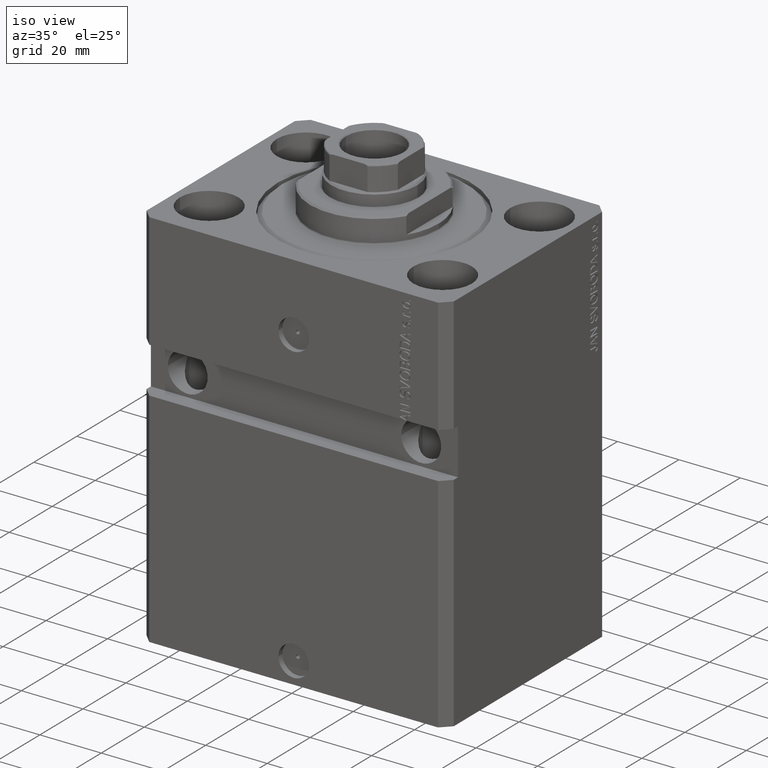
[diagram: clean part render]
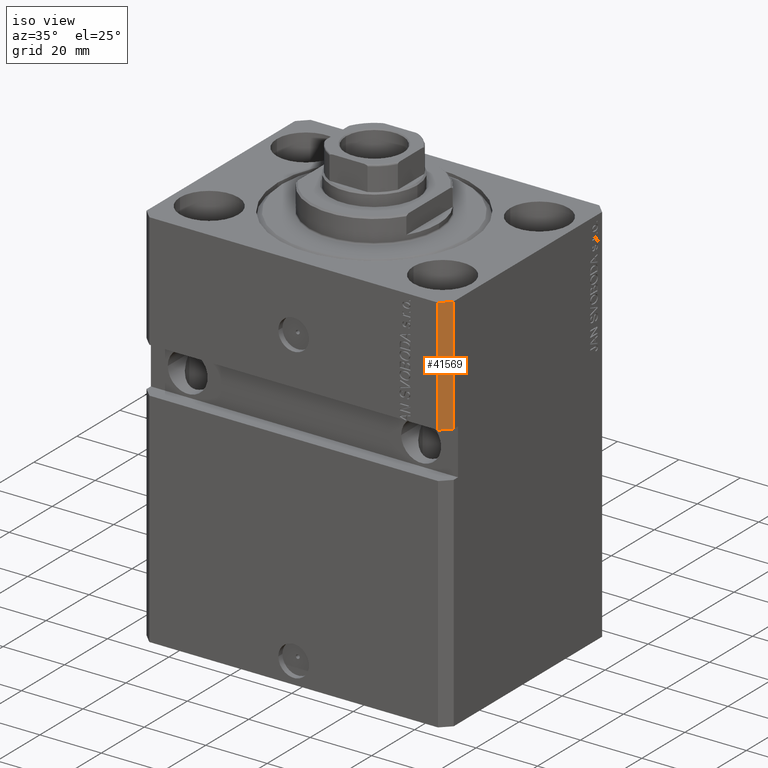
[diagram: same view with one face highlighted and labeled with its STEP entity id]
A machine part, iso view. The second image highlights one B-rep face of the part: STEP entity #41569.
In plain terms, the highlighted planar face has unit normal (0.7071, -0.7071, 0).
Its self-contained STEP definition (entity closure, byte-faithful):
#2608 = ORIENTED_EDGE ( 'NONE', *, *, #7898, .F. ) ;
#4505 = VECTOR ( 'NONE', #43391, 1000.000000000000000 ) ;
#5371 = CARTESIAN_POINT ( 'NONE',  ( 50.00000000000000000, -34.50000000000000711, -125.0000000000000000 ) ) ;
#5925 = DIRECTION ( 'NONE',  ( 0.7071067811865466846, -0.7071067811865483499, 0.000000000000000000 ) ) ;
#7898 = EDGE_CURVE ( 'NONE', #30951, #47470, #34976, .T. ) ;
#8667 = VECTOR ( 'NONE', #46283, 1000.000000000000000 ) ;
#12249 = LINE ( 'NONE', #16318, #32349 ) ;
#14124 = FACE_OUTER_BOUND ( 'NONE', #41948, .T. ) ;
#15474 = ORIENTED_EDGE ( 'NONE', *, *, #34335, .F. ) ;
#16318 = CARTESIAN_POINT ( 'NONE',  ( 46.99999999999999289, -37.50000000000001421, -37.49999999999999289 ) ) ;
#16670 = CARTESIAN_POINT ( 'NONE',  ( 47.00000000000000000, -37.50000000000000711, 0.000000000000000000 ) ) ;
#16920 = LINE ( 'NONE', #5371, #44241 ) ;
#17874 = EDGE_CURVE ( 'NONE', #20631, #47470, #16920, .T. ) ;
#19227 = DIRECTION ( 'NONE',  ( -0.7071067811865483499, -0.7071067811865466846, -9.813077866773606810E-17 ) ) ;
#19381 = CARTESIAN_POINT ( 'NONE',  ( 50.00000000000000000, -34.50000000000000711, 0.000000000000000000 ) ) ;
#20501 = CARTESIAN_POINT ( 'NONE',  ( 47.00000000000000000, -37.50000000000000711, -125.0000000000000000 ) ) ;
#20631 = VERTEX_POINT ( 'NONE', #39004 ) ;
#23944 = CARTESIAN_POINT ( 'NONE',  ( 47.00000000000000000, -37.50000000000000711, 0.000000000000000000 ) ) ;
#24111 = LINE ( 'NONE', #20501, #8667 ) ;
#25676 = AXIS2_PLACEMENT_3D ( 'NONE', #38924, #5925, #35553 ) ;
#27742 = DIRECTION ( 'NONE',  ( 0.000000000000000000, 0.000000000000000000, 1.000000000000000000 ) ) ;
#27834 = PLANE ( 'NONE',  #25676 ) ;
#29558 = VERTEX_POINT ( 'NONE', #35849 ) ;
#30951 = VERTEX_POINT ( 'NONE', #23944 ) ;
#32349 = VECTOR ( 'NONE', #19227, 1000.000000000000000 ) ;
#34335 = EDGE_CURVE ( 'NONE', #20631, #29558, #12249, .T. ) ;
#34976 = LINE ( 'NONE', #16670, #4505 ) ;
#35548 = ORIENTED_EDGE ( 'NONE', *, *, #17874, .T. ) ;
#35553 = DIRECTION ( 'NONE',  ( 0.7071067811865483499, 0.7071067811865466846, 0.000000000000000000 ) ) ;
#35849 = CARTESIAN_POINT ( 'NONE',  ( 47.00000000000000000, -37.49999999999999289, -37.49999999999999289 ) ) ;
#36605 = ORIENTED_EDGE ( 'NONE', *, *, #38831, .F. ) ;
#38831 = EDGE_CURVE ( 'NONE', #29558, #30951, #24111, .T. ) ;
#38924 = CARTESIAN_POINT ( 'NONE',  ( 47.00000000000000000, -37.50000000000000711, -125.0000000000000000 ) ) ;
#39004 = CARTESIAN_POINT ( 'NONE',  ( 49.99999999999999289, -34.50000000000001421, -37.49999999999999289 ) ) ;
#41569 = ADVANCED_FACE ( 'NONE', ( #14124 ), #27834, .T. ) ;
#41948 = EDGE_LOOP ( 'NONE', ( #15474, #35548, #2608, #36605 ) ) ;
#43391 = DIRECTION ( 'NONE',  ( 0.7071067811865483499, 0.7071067811865466846, 0.000000000000000000 ) ) ;
#44241 = VECTOR ( 'NONE', #27742, 1000.000000000000000 ) ;
#46283 = DIRECTION ( 'NONE',  ( 0.000000000000000000, 0.000000000000000000, 1.000000000000000000 ) ) ;
#47470 = VERTEX_POINT ( 'NONE', #19381 ) ;